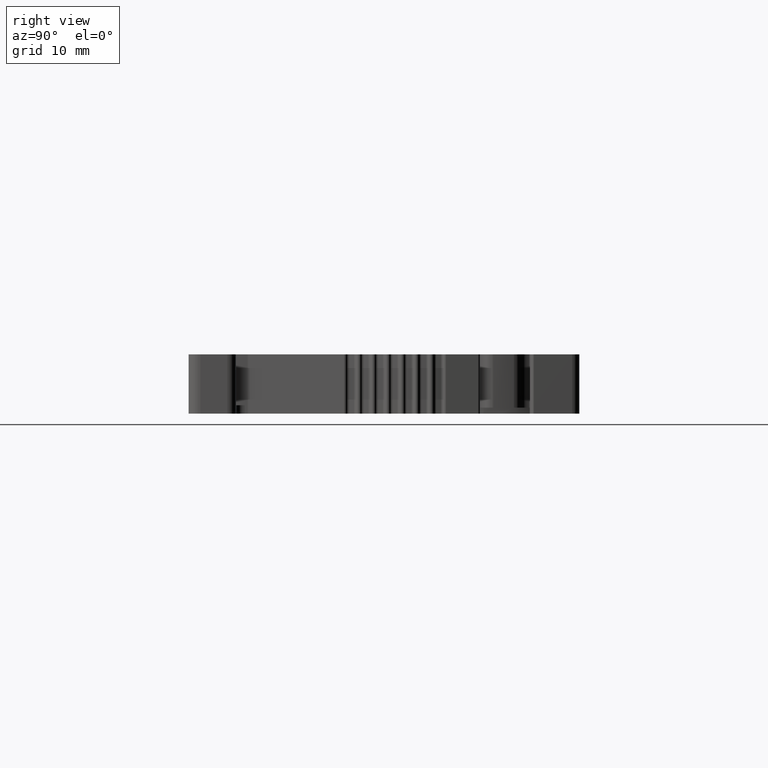
[diagram: clean part render]
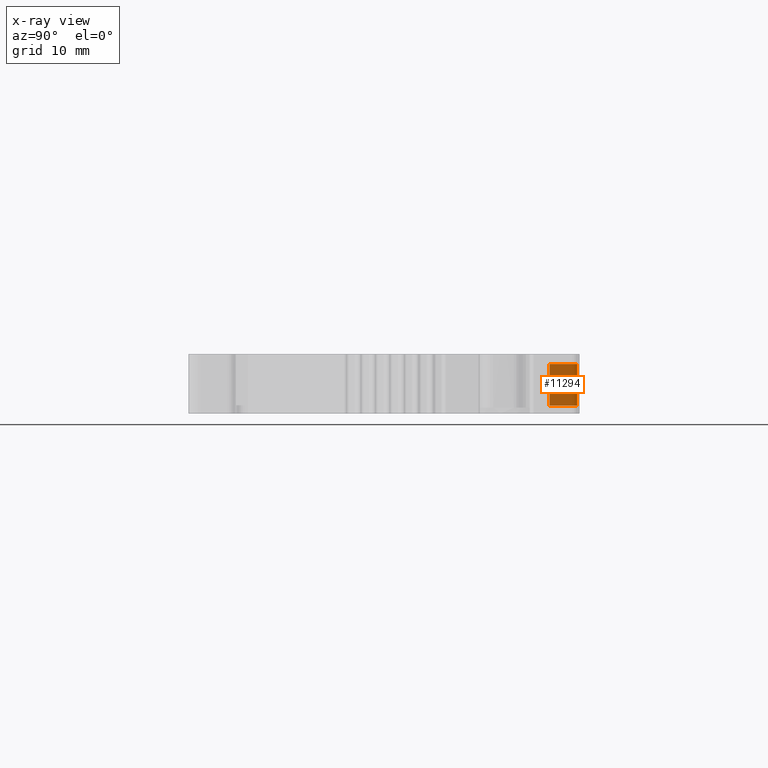
[diagram: x-ray — body ghosted, one internal face saturated and labeled with its STEP entity id]
A machine part, right view, then the same camera in x-ray: the body is ghosted and one INTERNAL B-rep face — a face not visible from any outside direction — is saturated and labeled: STEP entity #11294.
In plain terms, the highlighted planar face has unit normal (1, 0, 0).
Its self-contained STEP definition (entity closure, byte-faithful):
#194 = ORIENTED_EDGE ( 'NONE', *, *, #11578, .T. ) ;
#199 = ORIENTED_EDGE ( 'NONE', *, *, #11655, .F. ) ;
#202 = ORIENTED_EDGE ( 'NONE', *, *, #11672, .F. ) ;
#210 = ORIENTED_EDGE ( 'NONE', *, *, #11532, .F. ) ;
#211 = ORIENTED_EDGE ( 'NONE', *, *, #11567, .F. ) ;
#212 = ORIENTED_EDGE ( 'NONE', *, *, #11639, .T. ) ;
#236 = ORIENTED_EDGE ( 'NONE', *, *, #11621, .F. ) ;
#248 = ORIENTED_EDGE ( 'NONE', *, *, #11424, .T. ) ;
#879 = EDGE_LOOP ( 'NONE', ( #194, #248, #236, #210, #199, #212, #202, #211 ) ) ;
#1393 = VECTOR ( 'NONE', #4529, 1000.000000000000000 ) ;
#1426 = VECTOR ( 'NONE', #4459, 1000.000000000000000 ) ;
#1459 = VECTOR ( 'NONE', #5767, 1000.000000000000000 ) ;
#4013 = LINE ( 'NONE', #4048, #9568 ) ;
#4028 = DIRECTION ( 'NONE',  ( 0.0000000000000000000, 0.0000000000000000000, -1.000000000000000000 ) ) ;
#4048 = CARTESIAN_POINT ( 'NONE',  ( 1921.550100360095000, 518.1570829748443400, -50.50000000000000000 ) ) ;
#4368 = CARTESIAN_POINT ( 'NONE',  ( 1921.550100360095000, 520.4804094399860300, 1.675000000000000000 ) ) ;
#4369 = DIRECTION ( 'NONE',  ( 0.0000000000000000000, 0.0000000000000000000, -1.000000000000000000 ) ) ;
#4386 = LINE ( 'NONE', #4368, #9655 ) ;
#4459 = DIRECTION ( 'NONE',  ( 0.0000000000000000000, 0.0000000000000000000, -1.000000000000000000 ) ) ;
#4463 = LINE ( 'NONE', #4477, #1426 ) ;
#4477 = CARTESIAN_POINT ( 'NONE',  ( 1921.550100360095000, 520.4804094399860300, 1.675000000000000000 ) ) ;
#4510 = LINE ( 'NONE', #4514, #1393 ) ;
#4514 = CARTESIAN_POINT ( 'NONE',  ( 1921.550100360095000, 0.0000000000000000000, 1.675000000000000000 ) ) ;
#4529 = DIRECTION ( 'NONE',  ( 0.0000000000000000000, -1.000000000000000000, 0.0000000000000000000 ) ) ;
#4579 = CARTESIAN_POINT ( 'NONE',  ( 1921.550100360095000, 0.0000000000000000000, 1.675000000000000000 ) ) ;
#4591 = FACE_OUTER_BOUND ( 'NONE', #879, .T. ) ;
#4595 = DIRECTION ( 'NONE',  ( 1.000000000000000000, 0.0000000000000000000, 0.0000000000000000000 ) ) ;
#4600 = DIRECTION ( 'NONE',  ( 0.0000000000000000000, 0.0000000000000000000, -1.000000000000000000 ) ) ;
#4622 = PLANE ( 'NONE',  #9232 ) ;
#4797 = LINE ( 'NONE', #4822, #12241 ) ;
#4806 = DIRECTION ( 'NONE',  ( 0.0000000000000000000, 1.000000000000000000, 0.0000000000000000000 ) ) ;
#4822 = CARTESIAN_POINT ( 'NONE',  ( 1921.550100360095000, 0.0000000000000000000, -0.4249999999999999900 ) ) ;
#4831 = CARTESIAN_POINT ( 'NONE',  ( 1921.550100360095000, 0.0000000000000000000, 0.2750000000000000200 ) ) ;
#4832 = DIRECTION ( 'NONE',  ( 0.0000000000000000000, -1.000000000000000000, 0.0000000000000000000 ) ) ;
#4860 = LINE ( 'NONE', #4831, #12189 ) ;
#5752 = LINE ( 'NONE', #5762, #1459 ) ;
#5762 = CARTESIAN_POINT ( 'NONE',  ( 1921.550100360095000, 0.0000000000000000000, -1.825000000000000000 ) ) ;
#5767 = DIRECTION ( 'NONE',  ( 0.0000000000000000000, -1.000000000000000000, 0.0000000000000000000 ) ) ;
#5787 = LINE ( 'NONE', #5788, #12206 ) ;
#5788 = CARTESIAN_POINT ( 'NONE',  ( 1921.550100360095000, 519.9804094399860300, 1.675000000000000000 ) ) ;
#5814 = DIRECTION ( 'NONE',  ( 0.0000000000000000000, 0.0000000000000000000, 1.000000000000000000 ) ) ;
#6623 = CARTESIAN_POINT ( 'NONE',  ( 1921.550100360095000, 518.1570829748443400, -1.825000000000000200 ) ) ;
#6646 = CARTESIAN_POINT ( 'NONE',  ( 1921.550100360095000, 520.4804094399860300, 0.2750000000000000200 ) ) ;
#6658 = CARTESIAN_POINT ( 'NONE',  ( 1921.550100360095000, 520.4804094399860300, 1.675000000000000000 ) ) ;
#6691 = CARTESIAN_POINT ( 'NONE',  ( 1921.550100360095000, 520.4804094399860300, -1.825000000000000000 ) ) ;
#6717 = CARTESIAN_POINT ( 'NONE',  ( 1921.550100360095000, 518.1570829748443400, 1.675000000000000000 ) ) ;
#6850 = CARTESIAN_POINT ( 'NONE',  ( 1921.550100360095000, 520.4804094399860300, -0.4249999999999999900 ) ) ;
#6931 = CARTESIAN_POINT ( 'NONE',  ( 1921.550100360095000, 519.9804094399860300, 0.2750000000000000200 ) ) ;
#6948 = CARTESIAN_POINT ( 'NONE',  ( 1921.550100360095000, 519.9804094399860300, -0.4249999999999999900 ) ) ;
#9232 = AXIS2_PLACEMENT_3D ( 'NONE', #4579, #4595, #4600 ) ;
#9568 = VECTOR ( 'NONE', #4028, 1000.000000000000000 ) ;
#9655 = VECTOR ( 'NONE', #4369, 1000.000000000000000 ) ;
#10222 = VERTEX_POINT ( 'NONE', #6646 ) ;
#10240 = VERTEX_POINT ( 'NONE', #6623 ) ;
#10253 = VERTEX_POINT ( 'NONE', #6658 ) ;
#10295 = VERTEX_POINT ( 'NONE', #6717 ) ;
#10318 = VERTEX_POINT ( 'NONE', #6691 ) ;
#10738 = VERTEX_POINT ( 'NONE', #6850 ) ;
#11042 = VERTEX_POINT ( 'NONE', #6948 ) ;
#11065 = VERTEX_POINT ( 'NONE', #6931 ) ;
#11294 = ADVANCED_FACE ( 'NONE', ( #4591 ), #4622, .T. ) ;
#11424 = EDGE_CURVE ( 'NONE', #10295, #10240, #4013, .T. ) ;
#11532 = EDGE_CURVE ( 'NONE', #10738, #10318, #4386, .T. ) ;
#11567 = EDGE_CURVE ( 'NONE', #10253, #10222, #4463, .T. ) ;
#11578 = EDGE_CURVE ( 'NONE', #10253, #10295, #4510, .T. ) ;
#11621 = EDGE_CURVE ( 'NONE', #10318, #10240, #5752, .T. ) ;
#11639 = EDGE_CURVE ( 'NONE', #11042, #11065, #5787, .T. ) ;
#11655 = EDGE_CURVE ( 'NONE', #11042, #10738, #4797, .T. ) ;
#11672 = EDGE_CURVE ( 'NONE', #10222, #11065, #4860, .T. ) ;
#12189 = VECTOR ( 'NONE', #4832, 1000.000000000000000 ) ;
#12206 = VECTOR ( 'NONE', #5814, 1000.000000000000000 ) ;
#12241 = VECTOR ( 'NONE', #4806, 1000.000000000000000 ) ;